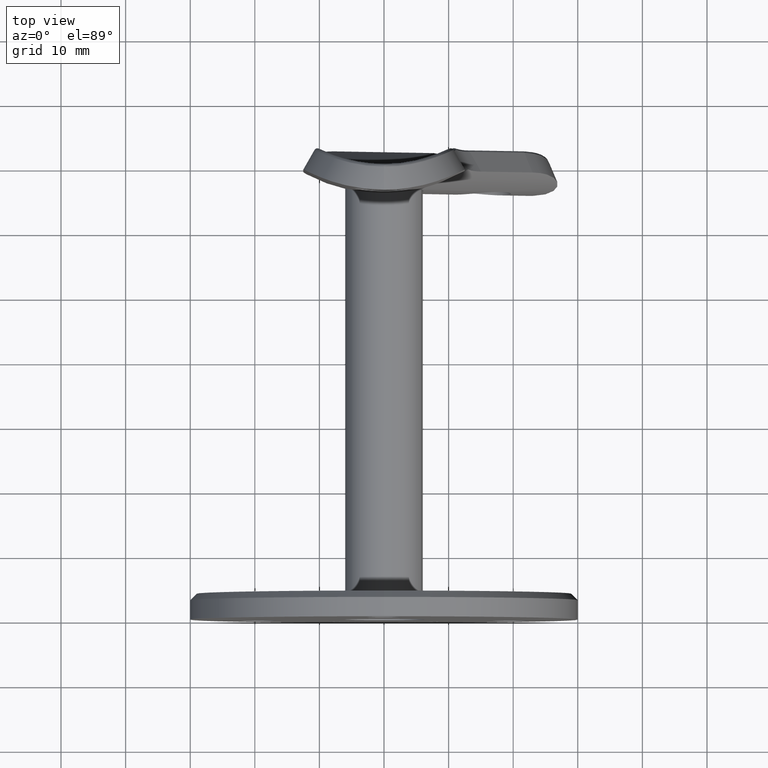
[diagram: clean part render]
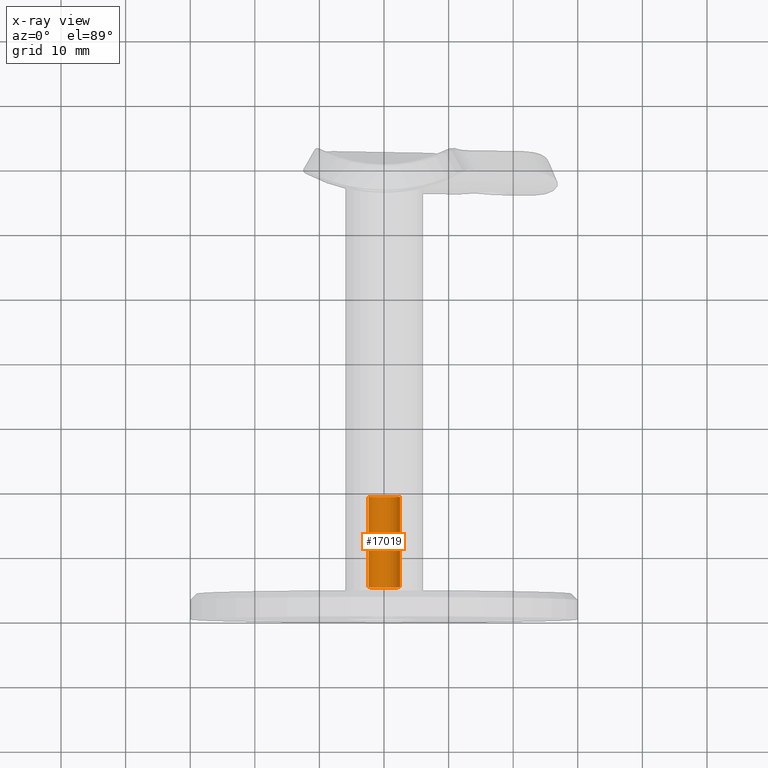
[diagram: x-ray — body ghosted, one internal face saturated and labeled with its STEP entity id]
A machine part, top view, then the same camera in x-ray: the body is ghosted and one INTERNAL B-rep face — a face not visible from any outside direction — is saturated and labeled: STEP entity #17019.
In plain terms, the highlighted cylindrical surface (edge-blend (fillet) strip) has radius 2.5 mm, axis along (0, -1, 0).
Its self-contained STEP definition (entity closure, byte-faithful):
#56 = AXIS2_PLACEMENT_3D ( 'NONE', #16776, #17953, #6303 ) ;
#112 = DIRECTION ( 'NONE',  ( 0.0000000000000000000, -1.000000000000000000, -0.0000000000000000000 ) ) ;
#645 = CARTESIAN_POINT ( 'NONE',  ( 0.0000000000000000000, 15.00000000000000000, 0.0000000000000000000 ) ) ;
#1150 = VERTEX_POINT ( 'NONE', #16523 ) ;
#1283 = CARTESIAN_POINT ( 'NONE',  ( 3.061616997868378200E-016, 15.00000000000000000, 2.499999999999996000 ) ) ;
#1434 = CARTESIAN_POINT ( 'NONE',  ( 3.061616997868374800E-016, 0.9999999999999974500, 2.499999999999992900 ) ) ;
#1694 = DIRECTION ( 'NONE',  ( 0.0000000000000000000, 0.0000000000000000000, -1.000000000000000000 ) ) ;
#1697 = DIRECTION ( 'NONE',  ( 0.0000000000000000000, -1.000000000000000000, -0.0000000000000000000 ) ) ;
#1894 = DIRECTION ( 'NONE',  ( 0.0000000000000000000, 0.0000000000000000000, -1.000000000000000000 ) ) ;
#2091 = VERTEX_POINT ( 'NONE', #1434 ) ;
#4721 = CARTESIAN_POINT ( 'NONE',  ( 0.0000000000000000000, 0.0000000000000000000, 0.0000000000000000000 ) ) ;
#4824 = CYLINDRICAL_SURFACE ( 'NONE', #6423, 2.499999999999992900 ) ;
#4893 = CIRCLE ( 'NONE', #56, 2.499999999999992900 ) ;
#5038 = CARTESIAN_POINT ( 'NONE',  ( 0.0000000000000000000, 0.9999999999999974500, -2.499999999999992900 ) ) ;
#5170 = EDGE_CURVE ( 'NONE', #2091, #13684, #4893, .T. ) ;
#5172 = EDGE_CURVE ( 'NONE', #1150, #13684, #13070, .T. ) ;
#5290 = AXIS2_PLACEMENT_3D ( 'NONE', #645, #10896, #1894 ) ;
#6234 = VECTOR ( 'NONE', #18038, 1000.000000000000000 ) ;
#6303 = DIRECTION ( 'NONE',  ( 0.0000000000000000000, 0.0000000000000000000, 1.000000000000000000 ) ) ;
#6423 = AXIS2_PLACEMENT_3D ( 'NONE', #4721, #112, #1694 ) ;
#6427 = ORIENTED_EDGE ( 'NONE', *, *, #18050, .F. ) ;
#7058 = ORIENTED_EDGE ( 'NONE', *, *, #16588, .T. ) ;
#7375 = CIRCLE ( 'NONE', #5290, 2.499999999999996000 ) ;
#9292 = FACE_OUTER_BOUND ( 'NONE', #9558, .T. ) ;
#9558 = EDGE_LOOP ( 'NONE', ( #6427, #7058, #18594, #10110 ) ) ;
#10110 = ORIENTED_EDGE ( 'NONE', *, *, #5172, .F. ) ;
#10798 = VERTEX_POINT ( 'NONE', #1283 ) ;
#10896 = DIRECTION ( 'NONE',  ( 0.0000000000000000000, -1.000000000000000000, -0.0000000000000000000 ) ) ;
#13070 = LINE ( 'NONE', #15271, #14020 ) ;
#13684 = VERTEX_POINT ( 'NONE', #5038 ) ;
#14020 = VECTOR ( 'NONE', #1697, 1000.000000000000000 ) ;
#14654 = LINE ( 'NONE', #15019, #6234 ) ;
#15019 = CARTESIAN_POINT ( 'NONE',  ( 3.061616997868374800E-016, 0.0000000000000000000, 2.499999999999992900 ) ) ;
#15271 = CARTESIAN_POINT ( 'NONE',  ( 0.0000000000000000000, 0.0000000000000000000, -2.499999999999992900 ) ) ;
#16523 = CARTESIAN_POINT ( 'NONE',  ( 0.0000000000000000000, 15.00000000000000000, -2.499999999999996000 ) ) ;
#16588 = EDGE_CURVE ( 'NONE', #10798, #2091, #14654, .T. ) ;
#16776 = CARTESIAN_POINT ( 'NONE',  ( 0.0000000000000000000, 0.9999999999999974500, 0.0000000000000000000 ) ) ;
#17019 = ADVANCED_FACE ( 'NONE', ( #9292 ), #4824, .F. ) ;
#17953 = DIRECTION ( 'NONE',  ( -0.0000000000000000000, -1.000000000000000000, -0.0000000000000000000 ) ) ;
#18038 = DIRECTION ( 'NONE',  ( 0.0000000000000000000, -1.000000000000000000, -0.0000000000000000000 ) ) ;
#18050 = EDGE_CURVE ( 'NONE', #10798, #1150, #7375, .T. ) ;
#18594 = ORIENTED_EDGE ( 'NONE', *, *, #5170, .T. ) ;